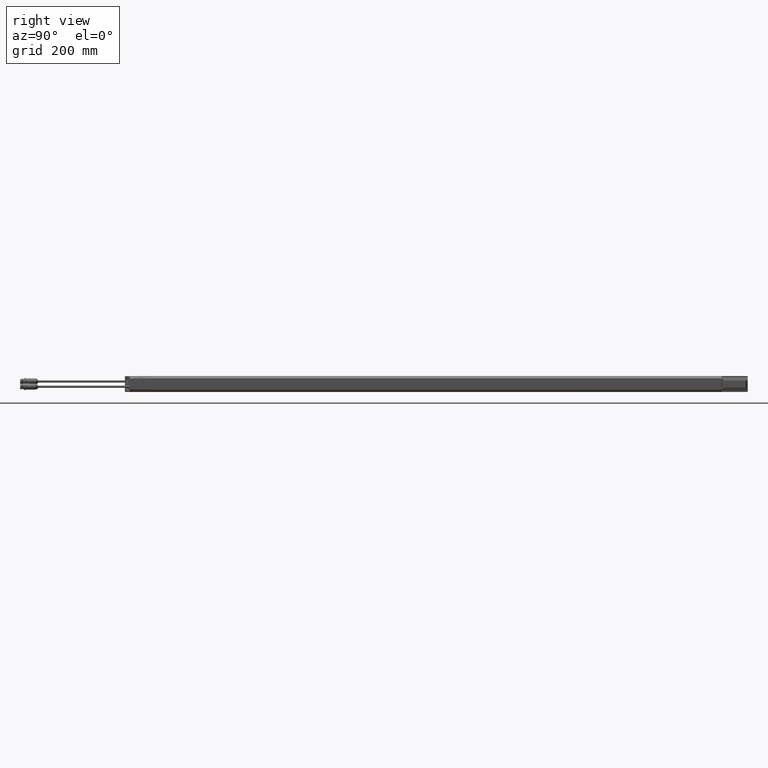
[diagram: clean part render]
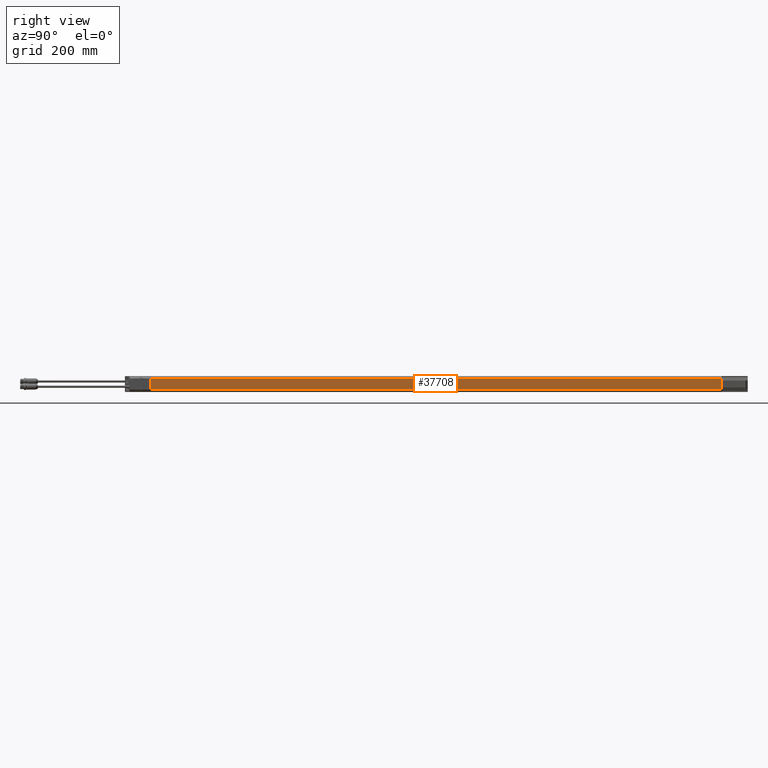
[diagram: same view with one face highlighted and labeled with its STEP entity id]
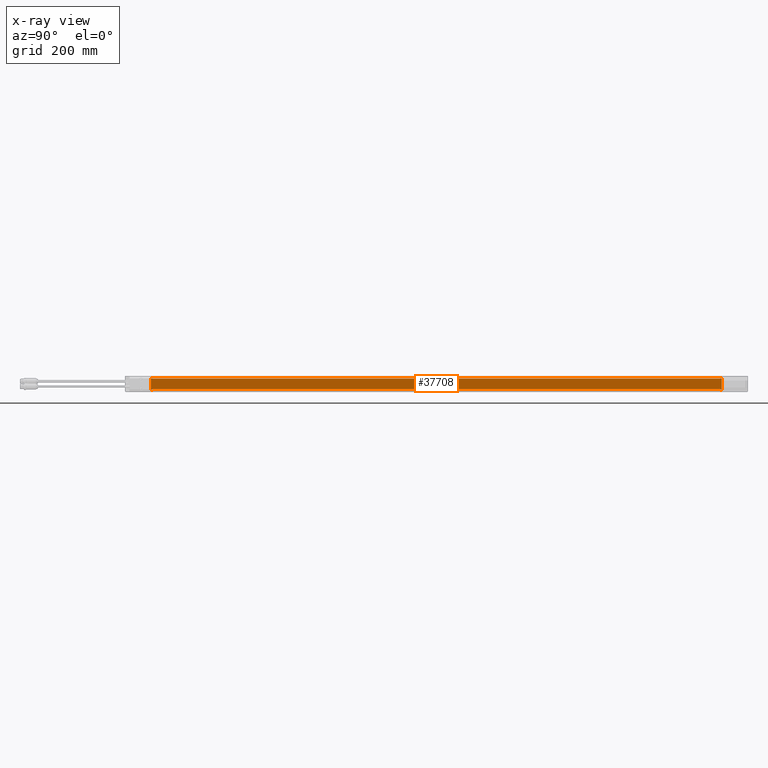
[diagram: x-ray of the same camera — body ghosted, the highlighted face saturated]
A machine part, right view. The second image highlights one B-rep face of the part: STEP entity #37708.
The next image is the same camera in x-ray: the body ghosted, the highlighted face saturated — about 0% of this face is hidden behind the body in this view.
In plain terms, the highlighted planar face has unit normal (1, 0, 0).
Its self-contained STEP definition (entity closure, byte-faithful):
#263 = CARTESIAN_POINT ( 'NONE',  ( 2.996062653574303347, 24.38976378928858679, -0.4683009132288149523 ) ) ;
#1057 = CARTESIAN_POINT ( 'NONE',  ( 2.996063117458539260, 24.51039023208751644, -0.4682872565979125934 ) ) ;
#1795 = CARTESIAN_POINT ( 'NONE',  ( 2.996062653739421044, 24.38976377952756280, -0.4676510919259582733 ) ) ;
#1868 = VERTEX_POINT ( 'NONE', #95789 ) ;
#2381 = EDGE_CURVE ( 'NONE', #85049, #12592, #3150, .T. ) ;
#2813 = VECTOR ( 'NONE', #84505, 39.37007874015748143 ) ;
#3150 = B_SPLINE_CURVE_WITH_KNOTS ( 'NONE', 3,
 ( #56308, #71775, #48553, #1057 ),
 .UNSPECIFIED., .F., .F.,
 ( 4, 4 ),
 ( 0.000000000000000000, 1.000000000000000000 ),
 .UNSPECIFIED. ) ;
#3241 = CARTESIAN_POINT ( 'NONE',  ( 2.996062992125984259, 24.51039023328621980, 0.6889763779527323662 ) ) ;
#3970 = VERTEX_POINT ( 'NONE', #75893 ) ;
#4098 = CARTESIAN_POINT ( 'NONE',  ( 2.996062992125984259, 24.51039023360629798, 0.4682873029651763996 ) ) ;
#5339 = ORIENTED_EDGE ( 'NONE', *, *, #63866, .T. ) ;
#5362 = EDGE_CURVE ( 'NONE', #89196, #53084, #7609, .T. ) ;
#6795 = CARTESIAN_POINT ( 'NONE',  ( 2.996062984786291405, 24.51039023335019351, 0.3189601078513681354 ) ) ;
#7103 = EDGE_CURVE ( 'NONE', #83686, #55233, #84714, .T. ) ;
#7603 = EDGE_CURVE ( 'NONE', #66030, #78121, #11838, .T. ) ;
#7609 = LINE ( 'NONE', #71610, #46559 ) ;
#8610 = CARTESIAN_POINT ( 'NONE',  ( 2.996062653739421044, 24.38976377952756280, 0.4676510190787055432 ) ) ;
#9546 = CARTESIAN_POINT ( 'NONE',  ( 2.996062992125984259, -24.38976377952756280, -0.4663514493758684765 ) ) ;
#10050 = VERTEX_POINT ( 'NONE', #10321 ) ;
#10321 = CARTESIAN_POINT ( 'NONE',  ( 2.996063005481129693, -24.38976377952756280, -0.4683008921620102627 ) ) ;
#11838 = LINE ( 'NONE', #4098, #47479 ) ;
#12487 = EDGE_CURVE ( 'NONE', #1868, #33751, #44217, .T. ) ;
#12592 = VERTEX_POINT ( 'NONE', #82421 ) ;
#14847 = DIRECTION ( 'NONE',  ( 0.000000000000000000, 1.000000000000000000, -9.330999788449910017E-16 ) ) ;
#15232 = CARTESIAN_POINT ( 'NONE',  ( 2.996062653574303347, 24.38976378928858679, -0.4683009132288149523 ) ) ;
#15588 = VECTOR ( 'NONE', #57989, 39.37007874015748143 ) ;
#16169 = DIRECTION ( 'NONE',  ( 1.000000000000000000, 0.000000000000000000, 0.000000000000000000 ) ) ;
#17076 = ORIENTED_EDGE ( 'NONE', *, *, #64475, .F. ) ;
#18303 = EDGE_CURVE ( 'NONE', #3970, #28741, #84018, .T. ) ;
#18647 = VECTOR ( 'NONE', #21580, 39.37007874015748143 ) ;
#18989 = DIRECTION ( 'NONE',  ( 2.959116022386649526E-20, 9.297091677391781167E-16, 1.000000000000000000 ) ) ;
#19991 = LINE ( 'NONE', #44227, #81908 ) ;
#20334 = CARTESIAN_POINT ( 'NONE',  ( 2.996063138490189015, -24.50944539410192746, 0.4682873542943976619 ) ) ;
#21215 = CARTESIAN_POINT ( 'NONE',  ( 2.996063138490189015, -24.50944539410192746, 0.4682873542943976619 ) ) ;
#21580 = DIRECTION ( 'NONE',  ( 0.000000000000000000, 9.330999788449910017E-16, 1.000000000000000000 ) ) ;
#21712 = CARTESIAN_POINT ( 'NONE',  ( 2.996062653739421044, 24.38976377952756280, -0.4670012706509362732 ) ) ;
#24104 = CARTESIAN_POINT ( 'NONE',  ( 2.996062653739421044, 24.38976377952756280, 0.4670012342272858441 ) ) ;
#24324 = VECTOR ( 'NONE', #26141, 39.37007874015748854 ) ;
#26141 = DIRECTION ( 'NONE',  ( -4.377178461672026361E-20, 0.9999999936554333502, -0.0001126460530804776407 ) ) ;
#26467 = CARTESIAN_POINT ( 'NONE',  ( 2.996062661528834603, -24.38976378928669675, 0.4683009132249315032 ) ) ;
#28741 = VERTEX_POINT ( 'NONE', #6795 ) ;
#28944 = CARTESIAN_POINT ( 'NONE',  ( 2.996062992125984259, -24.46955152257747912, 0.4682918739283866705 ) ) ;
#29024 = CARTESIAN_POINT ( 'NONE',  ( 2.996062937078448396, 24.51039023344618073, 0.4682873029691850264 ) ) ;
#29823 = ORIENTED_EDGE ( 'NONE', *, *, #18303, .T. ) ;
#30837 = DIRECTION ( 'NONE',  ( 0.000000000000000000, 9.330999788449910017E-16, 1.000000000000000000 ) ) ;
#30859 = ORIENTED_EDGE ( 'NONE', *, *, #12487, .T. ) ;
#33751 = VERTEX_POINT ( 'NONE', #92438 ) ;
#34122 = B_SPLINE_CURVE_WITH_KNOTS ( 'NONE', 3,
 ( #15232, #1795, #21712, #73788 ),
 .UNSPECIFIED., .F., .F.,
 ( 4, 4 ),
 ( 0.000000000000000000, 0.002081422433260554910 ),
 .UNSPECIFIED. ) ;
#35612 = CARTESIAN_POINT ( 'NONE',  ( 2.996062992125984259, 24.38976377952756280, -0.4663514493759141621 ) ) ;
#36771 = B_SPLINE_CURVE_WITH_KNOTS ( 'NONE', 3,
 ( #72108, #24104, #8610, #47835 ),
 .UNSPECIFIED., .F., .F.,
 ( 4, 4 ),
 ( 0.9979186942340539934, 1.000000000000000000 ),
 .UNSPECIFIED. ) ;
#37708 = ADVANCED_FACE ( 'NONE', ( #78602 ), #85345, .T. ) ;
#38590 = LINE ( 'NONE', #55098, #50631 ) ;
#38599 = CARTESIAN_POINT ( 'NONE',  ( 2.996062827379870175, 24.38976377952756280, 0.4683008039301653769 ) ) ;
#44217 = LINE ( 'NONE', #84465, #53882 ) ;
#44227 = CARTESIAN_POINT ( 'NONE',  ( 2.996062957099704605, -24.50944539554346591, 0.6003937007874232679 ) ) ;
#44387 = EDGE_CURVE ( 'NONE', #28741, #66030, #55940, .T. ) ;
#45451 = CARTESIAN_POINT ( 'NONE',  ( 2.996062661528834603, -24.38976378928669675, 0.4683009132249315032 ) ) ;
#46559 = VECTOR ( 'NONE', #14847, 39.37007874015748143 ) ;
#47225 = ORIENTED_EDGE ( 'NONE', *, *, #7103, .T. ) ;
#47479 = VECTOR ( 'NONE', #50583, 39.37007874015748854 ) ;
#47835 = CARTESIAN_POINT ( 'NONE',  ( 2.996062827379870175, 24.38976377952756280, 0.4683008039301653769 ) ) ;
#48553 = CARTESIAN_POINT ( 'NONE',  ( 2.996062992125984259, 24.47018141460236151, -0.4682918087985599165 ) ) ;
#49498 = ORIENTED_EDGE ( 'NONE', *, *, #67373, .F. ) ;
#49729 = DIRECTION ( 'NONE',  ( 0.000000000000000000, 9.330999788449910017E-16, 1.000000000000000000 ) ) ;
#50583 = DIRECTION ( 'NONE',  ( 0.000000000000000000, -0.9999999937365373626, 0.0001119237481315020261 ) ) ;
#50631 = VECTOR ( 'NONE', #30837, 39.37007874015748143 ) ;
#51192 = ORIENTED_EDGE ( 'NONE', *, *, #64437, .T. ) ;
#52067 = ORIENTED_EDGE ( 'NONE', *, *, #89238, .F. ) ;
#52992 = DIRECTION ( 'NONE',  ( 0.000000000000000000, -1.000000000000000000, 9.330999788449910017E-16 ) ) ;
#53034 = CARTESIAN_POINT ( 'NONE',  ( 2.996062992125984259, -24.38976377952756280, -0.6889763779527342535 ) ) ;
#53084 = VERTEX_POINT ( 'NONE', #35612 ) ;
#53882 = VECTOR ( 'NONE', #52992, 39.37007874015748143 ) ;
#55098 = CARTESIAN_POINT ( 'NONE',  ( 2.996062992125984259, 24.51039023213976265, 0.6889763779527323662 ) ) ;
#55233 = VERTEX_POINT ( 'NONE', #20334 ) ;
#55415 = DIRECTION ( 'NONE',  ( 0.000000000000000000, 1.000000000000000000, 0.000000000000000000 ) ) ;
#55940 = LINE ( 'NONE', #3241, #93957 ) ;
#56308 = CARTESIAN_POINT ( 'NONE',  ( 2.996062653574303347, 24.38976378928858679, -0.4683009132288149523 ) ) ;
#57989 = DIRECTION ( 'NONE',  ( 3.885780586188049864E-16, 9.330999788449910017E-16, 1.000000000000000000 ) ) ;
#60264 = ORIENTED_EDGE ( 'NONE', *, *, #80833, .T. ) ;
#60848 = ORIENTED_EDGE ( 'NONE', *, *, #2381, .T. ) ;
#61280 = ORIENTED_EDGE ( 'NONE', *, *, #7603, .T. ) ;
#61319 = LINE ( 'NONE', #53034, #2813 ) ;
#63433 = ORIENTED_EDGE ( 'NONE', *, *, #64503, .T. ) ;
#63866 = EDGE_CURVE ( 'NONE', #12592, #3970, #38590, .T. ) ;
#64437 = EDGE_CURVE ( 'NONE', #33751, #83686, #61319, .T. ) ;
#64475 = EDGE_CURVE ( 'NONE', #1868, #78121, #36771, .T. ) ;
#64503 = EDGE_CURVE ( 'NONE', #66311, #10050, #65372, .T. ) ;
#65372 = LINE ( 'NONE', #96843, #24324 ) ;
#66030 = VERTEX_POINT ( 'NONE', #29024 ) ;
#66311 = VERTEX_POINT ( 'NONE', #81589 ) ;
#67373 = EDGE_CURVE ( 'NONE', #66311, #55233, #19991, .T. ) ;
#67840 = ORIENTED_EDGE ( 'NONE', *, *, #44387, .T. ) ;
#71610 = CARTESIAN_POINT ( 'NONE',  ( 2.996062992125984259, 105.5314960629921188, -0.4663514493759897683 ) ) ;
#71775 = CARTESIAN_POINT ( 'NONE',  ( 2.996062992125984259, 24.42997259706496394, -0.4682963610003275656 ) ) ;
#72108 = CARTESIAN_POINT ( 'NONE',  ( 2.996062992125984259, 24.38976377952756280, 0.4663514493758661450 ) ) ;
#73788 = CARTESIAN_POINT ( 'NONE',  ( 2.996062992125984259, 24.38976377952756280, -0.4663514493759141621 ) ) ;
#75893 = CARTESIAN_POINT ( 'NONE',  ( 2.996062992125984259, 24.51039023305684950, -0.3189601074669562997 ) ) ;
#78121 = VERTEX_POINT ( 'NONE', #38599 ) ;
#78602 = FACE_OUTER_BOUND ( 'NONE', #90378, .T. ) ;
#79642 = CARTESIAN_POINT ( 'NONE',  ( 2.996062992125984259, -24.38976377952756280, -0.6889763779527342535 ) ) ;
#80833 = EDGE_CURVE ( 'NONE', #10050, #89196, #87385, .T. ) ;
#81589 = CARTESIAN_POINT ( 'NONE',  ( 2.996062895803720316, -24.50944539615480622, -0.4682874105053086433 ) ) ;
#81908 = VECTOR ( 'NONE', #18989, 39.37007874015748143 ) ;
#82421 = CARTESIAN_POINT ( 'NONE',  ( 2.996063117458539260, 24.51039023208751644, -0.4682872565979125934 ) ) ;
#83686 = VERTEX_POINT ( 'NONE', #26467 ) ;
#84018 = LINE ( 'NONE', #92283, #18647 ) ;
#84465 = CARTESIAN_POINT ( 'NONE',  ( 2.996062992125984259, 105.5314960629921188, 0.4663514493757897061 ) ) ;
#84505 = DIRECTION ( 'NONE',  ( 3.885780586188049864E-16, 9.330999788449910017E-16, 1.000000000000000000 ) ) ;
#84714 = B_SPLINE_CURVE_WITH_KNOTS ( 'NONE', 3,
 ( #45451, #99642, #28944, #21215 ),
 .UNSPECIFIED., .F., .F.,
 ( 4, 4 ),
 ( 0.000000000000000000, 1.000000000000000000 ),
 .UNSPECIFIED. ) ;
#85049 = VERTEX_POINT ( 'NONE', #263 ) ;
#85345 = PLANE ( 'NONE',  #95306 ) ;
#87385 = LINE ( 'NONE', #79642, #15588 ) ;
#89196 = VERTEX_POINT ( 'NONE', #9546 ) ;
#89238 = EDGE_CURVE ( 'NONE', #85049, #53084, #34122, .T. ) ;
#90378 = EDGE_LOOP ( 'NONE', ( #67840, #61280, #17076, #30859, #51192, #47225, #49498, #63433, #60264, #92100, #52067, #60848, #5339, #29823 ) ) ;
#92100 = ORIENTED_EDGE ( 'NONE', *, *, #5362, .T. ) ;
#92283 = CARTESIAN_POINT ( 'NONE',  ( 2.996062992125984259, 24.51039023328621980, 0.6889763779527323662 ) ) ;
#92438 = CARTESIAN_POINT ( 'NONE',  ( 2.996062992125984259, -24.38976377952756280, 0.4663514493759109980 ) ) ;
#93957 = VECTOR ( 'NONE', #49729, 39.37007874015748143 ) ;
#95306 = AXIS2_PLACEMENT_3D ( 'NONE', #101325, #16169, #55415 ) ;
#95789 = CARTESIAN_POINT ( 'NONE',  ( 2.996062992125984259, 24.38976377952756280, 0.4663514493758661450 ) ) ;
#96843 = CARTESIAN_POINT ( 'NONE',  ( 2.996062992125984259, -24.50944539554346591, -0.4682874105001322840 ) ) ;
#99642 = CARTESIAN_POINT ( 'NONE',  ( 2.996062992125984259, -24.42965765105252274, 0.4682963935639448683 ) ) ;
#101325 = CARTESIAN_POINT ( 'NONE',  ( 2.996062992125984259, 24.75393700787401841, 0.6889763779527302567 ) ) ;